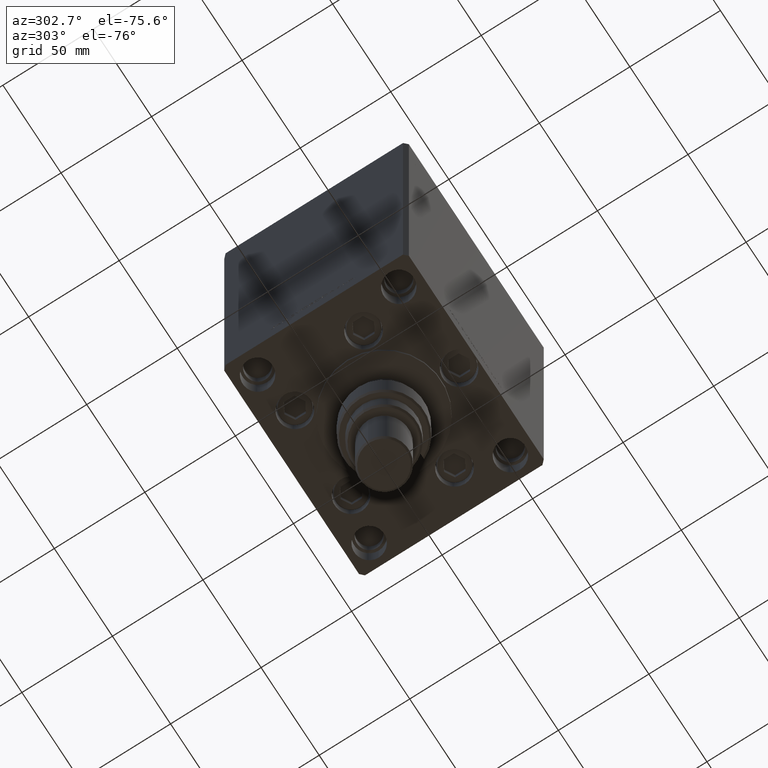
[diagram: clean part render]
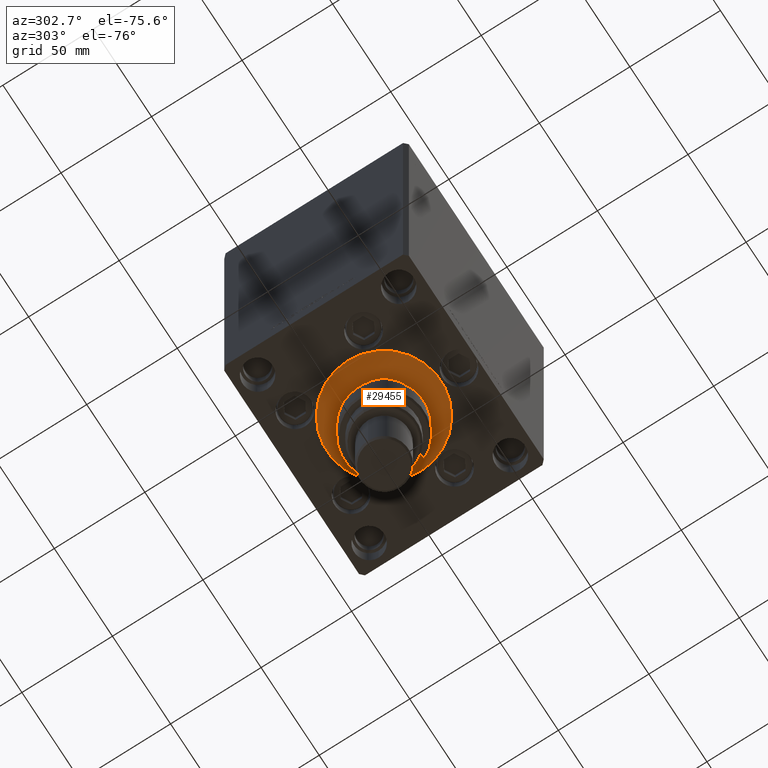
[diagram: same view with one face highlighted and labeled with its STEP entity id]
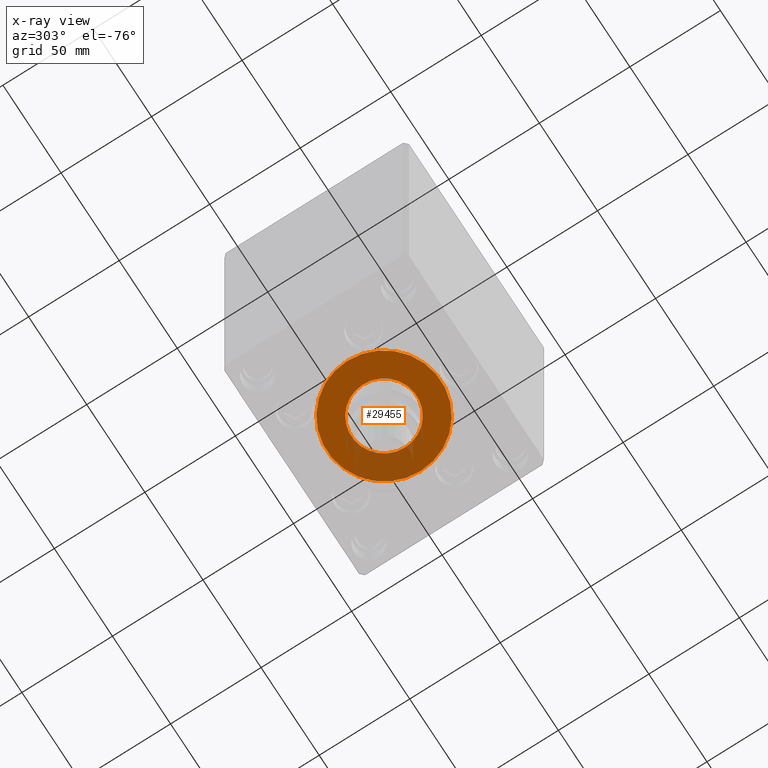
[diagram: x-ray of the same camera — body ghosted, the highlighted face saturated]
A machine part, auxiliary view. The second image highlights one B-rep face of the part: STEP entity #29455.
The next image is the same camera in x-ray: the body ghosted, the highlighted face saturated — about 23% of this face is hidden behind the body in this view.
In plain terms, the highlighted planar face has unit normal (0, 0, -1).
Its self-contained STEP definition (entity closure, byte-faithful):
#76 = CIRCLE ( 'NONE', #4945, 18.00000000000000000 ) ;
#877 = DIRECTION ( 'NONE',  ( 1.000000000000000000, 0.000000000000000000, 0.000000000000000000 ) ) ;
#934 = EDGE_CURVE ( 'NONE', #48170, #2853, #76, .T. ) ;
#982 = ORIENTED_EDGE ( 'NONE', *, *, #934, .F. ) ;
#2130 = CARTESIAN_POINT ( 'NONE',  ( 18.00000000000000000, -6.938893903907228378E-15, 2.000000000000000000 ) ) ;
#2783 = CIRCLE ( 'NONE', #46658, 31.50000000000000000 ) ;
#2853 = VERTEX_POINT ( 'NONE', #2130 ) ;
#3374 = CARTESIAN_POINT ( 'NONE',  ( -31.50000000000000000, -6.938893903907228378E-15, 2.000000000000000000 ) ) ;
#4945 = AXIS2_PLACEMENT_3D ( 'NONE', #34034, #49801, #45732 ) ;
#6263 = CARTESIAN_POINT ( 'NONE',  ( 0.000000000000000000, -6.938893903907228378E-15, 2.000000000000000000 ) ) ;
#6995 = PLANE ( 'NONE',  #21221 ) ;
#9378 = FACE_OUTER_BOUND ( 'NONE', #14189, .T. ) ;
#9496 = EDGE_CURVE ( 'NONE', #10514, #30228, #18111, .T. ) ;
#10278 = AXIS2_PLACEMENT_3D ( 'NONE', #6263, #10327, #37319 ) ;
#10327 = DIRECTION ( 'NONE',  ( 0.000000000000000000, 0.000000000000000000, 1.000000000000000000 ) ) ;
#10514 = VERTEX_POINT ( 'NONE', #3374 ) ;
#12544 = DIRECTION ( 'NONE',  ( 0.000000000000000000, 0.000000000000000000, 1.000000000000000000 ) ) ;
#12727 = CIRCLE ( 'NONE', #10278, 18.00000000000000000 ) ;
#14189 = EDGE_LOOP ( 'NONE', ( #22824, #15066 ) ) ;
#14371 = CARTESIAN_POINT ( 'NONE',  ( 0.000000000000000000, -6.938893903907228378E-15, 2.000000000000000000 ) ) ;
#15066 = ORIENTED_EDGE ( 'NONE', *, *, #39797, .T. ) ;
#15687 = CARTESIAN_POINT ( 'NONE',  ( -18.00000000000000000, -4.734529665441992555E-15, 2.000000000000000000 ) ) ;
#18111 = CIRCLE ( 'NONE', #39236, 31.50000000000000000 ) ;
#21221 = AXIS2_PLACEMENT_3D ( 'NONE', #14371, #40436, #26576 ) ;
#21774 = FACE_BOUND ( 'NONE', #26546, .T. ) ;
#22824 = ORIENTED_EDGE ( 'NONE', *, *, #9496, .T. ) ;
#26546 = EDGE_LOOP ( 'NONE', ( #27222, #982 ) ) ;
#26576 = DIRECTION ( 'NONE',  ( 1.000000000000000000, 0.000000000000000000, -0.000000000000000000 ) ) ;
#27222 = ORIENTED_EDGE ( 'NONE', *, *, #46988, .F. ) ;
#29455 = ADVANCED_FACE ( 'NONE', ( #21774, #9378 ), #6995, .T. ) ;
#30228 = VERTEX_POINT ( 'NONE', #31326 ) ;
#31326 = CARTESIAN_POINT ( 'NONE',  ( 31.50000000000000000, -3.081256486593065689E-15, 2.000000000000000000 ) ) ;
#32379 = CARTESIAN_POINT ( 'NONE',  ( 0.000000000000000000, -6.938893903907228378E-15, 2.000000000000000000 ) ) ;
#34034 = CARTESIAN_POINT ( 'NONE',  ( 0.000000000000000000, -6.938893903907228378E-15, 2.000000000000000000 ) ) ;
#37319 = DIRECTION ( 'NONE',  ( 1.000000000000000000, 0.000000000000000000, 0.000000000000000000 ) ) ;
#39236 = AXIS2_PLACEMENT_3D ( 'NONE', #32379, #12544, #47920 ) ;
#39797 = EDGE_CURVE ( 'NONE', #30228, #10514, #2783, .T. ) ;
#39800 = CARTESIAN_POINT ( 'NONE',  ( 0.000000000000000000, -6.938893903907228378E-15, 2.000000000000000000 ) ) ;
#40436 = DIRECTION ( 'NONE',  ( 0.000000000000000000, 0.000000000000000000, 1.000000000000000000 ) ) ;
#44110 = DIRECTION ( 'NONE',  ( 0.000000000000000000, 0.000000000000000000, 1.000000000000000000 ) ) ;
#45732 = DIRECTION ( 'NONE',  ( 1.000000000000000000, 0.000000000000000000, 0.000000000000000000 ) ) ;
#46658 = AXIS2_PLACEMENT_3D ( 'NONE', #39800, #44110, #877 ) ;
#46988 = EDGE_CURVE ( 'NONE', #2853, #48170, #12727, .T. ) ;
#47920 = DIRECTION ( 'NONE',  ( 1.000000000000000000, 0.000000000000000000, 0.000000000000000000 ) ) ;
#48170 = VERTEX_POINT ( 'NONE', #15687 ) ;
#49801 = DIRECTION ( 'NONE',  ( 0.000000000000000000, 0.000000000000000000, 1.000000000000000000 ) ) ;